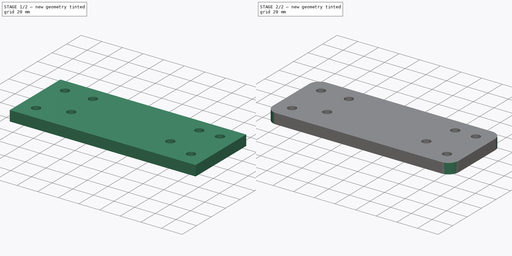
[diagram: build sequence overview — one tinted view per stage of 2, left to right]
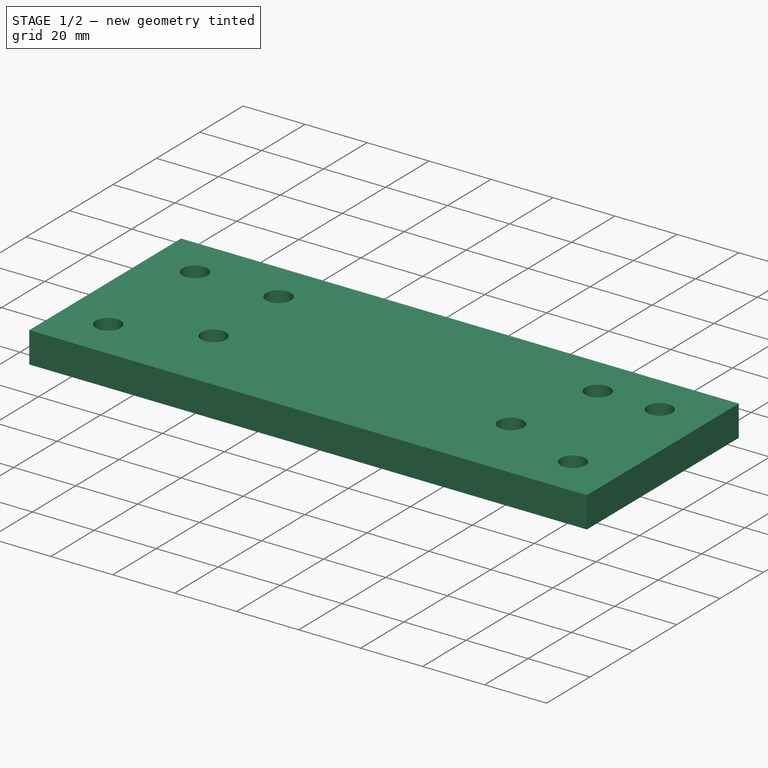
[diagram: stage 1 of 2 — iso view after this stage's code; geometry added in this stage tinted green]
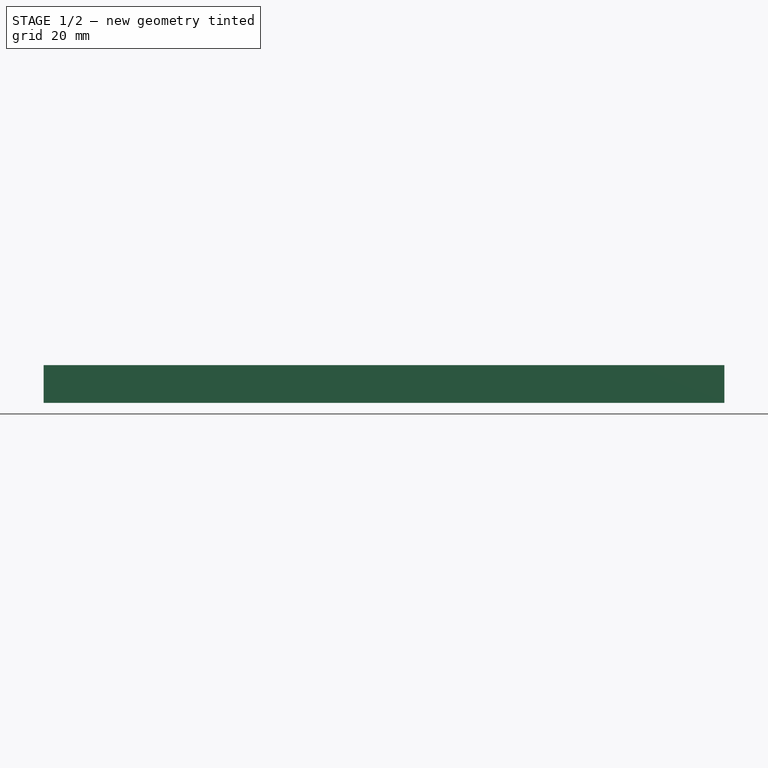
[diagram: stage 1 of 2 — front view after this stage's code; geometry added in this stage tinted green]
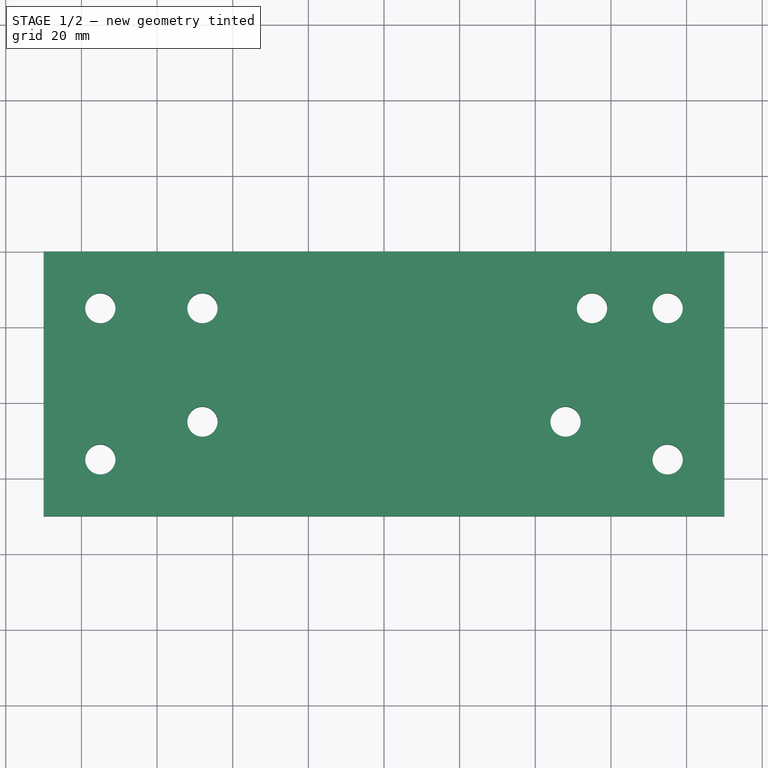
[diagram: stage 1 of 2 — top view after this stage's code; geometry added in this stage tinted green]
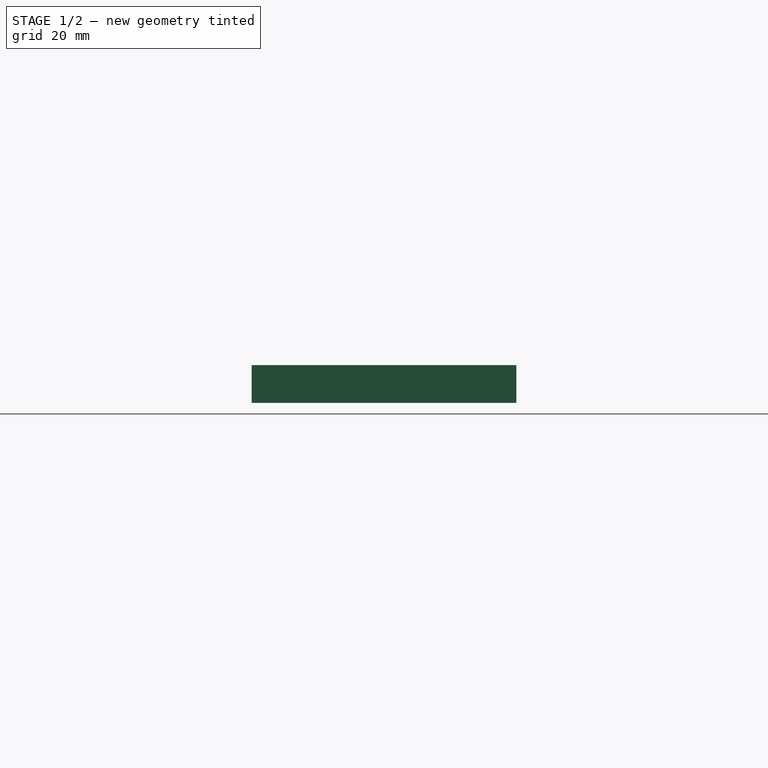
[diagram: stage 1 of 2 — right view after this stage's code; geometry added in this stage tinted green]
FCSTD DOCUMENT  (FreeCAD 0.19R24276 (Git))
Label: BLDC_holder_opora_x2_V2
License: All rights reserved
LicenseURL: http://en.wikipedia.org/wiki/All_rights_reserved
objects: Sketcher::SketchObject×1, PartDesign::Pad×1, PartDesign::Fillet×1, PartDesign::Body×1
note: 6 computed .brp shape members not serialized (recipe doc carries the construction recipe); baked Part::Feature solids carry a one-line shape summary decoded from their .brp

FEATURE [Sketcher::SketchObject] Sketch
  FullyConstrained = true
  MapMode = 5
  Support = -> [XY_Plane]
  sketch-geometry (20):
    g0: LineSegment StartX=0 StartY=0 StartZ=0 EndX=120 EndY=0 EndZ=0
    g1: LineSegment StartX=120 StartY=0 StartZ=0 EndX=120 EndY=60 EndZ=0
    g2: LineSegment StartX=120 StartY=60 StartZ=0 EndX=0 EndY=60 EndZ=0
    g3: LineSegment StartX=0 StartY=60 StartZ=0 EndX=0 EndY=0 EndZ=0
    g4: Circle CenterX=-15 CenterY=45 CenterZ=0 NormalX=0 NormalY=0 NormalZ=1 AngleXU=0 Radius=4
    g5: Circle CenterX=135 CenterY=45 CenterZ=0 NormalX=0 NormalY=0 NormalZ=1 AngleXU=0 Radius=4
    g6: LineSegment StartX=60 StartY=0 StartZ=0 EndX=60 EndY=45 EndZ=0
    g7: Circle CenterX=-15 CenterY=5 CenterZ=0 NormalX=0 NormalY=0 NormalZ=1 AngleXU=0 Radius=4
    g8: Circle CenterX=135 CenterY=5 CenterZ=0 NormalX=0 NormalY=0 NormalZ=1 AngleXU=0 Radius=4
    g9: LineSegment StartX=-30 StartY=60 StartZ=0 EndX=150 EndY=60 EndZ=0
    g10: LineSegment StartX=150 StartY=60 StartZ=0 EndX=150 EndY=-10 EndZ=0
    g11: LineSegment StartX=150 StartY=-10 StartZ=0 EndX=-30 EndY=-10 EndZ=0
    g12: LineSegment StartX=-30 StartY=-10 StartZ=0 EndX=-30 EndY=60 EndZ=0
    g13: LineSegment StartX=60 StartY=0 StartZ=0 EndX=60 EndY=-10 EndZ=0
    g14: Circle CenterX=12 CenterY=45 CenterZ=0 NormalX=0 NormalY=0 NormalZ=1 AngleXU=0 Radius=4
    g15: Circle CenterX=108 CenterY=45 CenterZ=0 NormalX=0 NormalY=0 NormalZ=1 AngleXU=0 Radius=4
    g16: LineSegment StartX=60 StartY=0 StartZ=0 EndX=60 EndY=45 EndZ=0
    g17: Circle CenterX=12 CenterY=15 CenterZ=0 NormalX=0 NormalY=0 NormalZ=1 AngleXU=0 Radius=4
    g18: Circle CenterX=108 CenterY=15 CenterZ=0 NormalX=0 NormalY=0 NormalZ=1 AngleXU=0 Radius=4
    g19: Circle CenterX=115 CenterY=45 CenterZ=0 NormalX=0 NormalY=0 NormalZ=1 AngleXU=0 Radius=4
  constraints (56):
    c: Coincident(g0,g1)
    c: Coincident(g1,g2)
    c: Coincident(g2,g3)
    c: Coincident(g3,g0)
    c: Horizontal(g0)
    c: Horizontal(g2)
    c: Vertical(g1)
    c: Vertical(g3)
    c: Coincident(g0,g-1)
    c: DistanceX(g0,g0) = 120
    c: DistanceY(g3,g3) = 60
    c: Horizontal(g4,g5)
    c: Diameter(g4) = 8
    c: Equal(g4,g5)
    c: DistanceX(g4,g5) = 150
    c: Vertical(g6)
    c: Symmetric(g0,g0,g6)
    c: Symmetric(g4,g5,g6)
    c: Horizontal(g7,g8)
    c: Equal(g4,g7) = 8
    c: Equal(g7,g8)
    c: DistanceX(g7,g8) = 150
    c: Vertical(g7,g4)
    c: Coincident(g9,g10)
    c: Coincident(g10,g11)
    c: Coincident(g11,g12)
    c: Coincident(g12,g9)
    c: Horizontal(g9)
    c: Horizontal(g11)
    c: Vertical(g10)
    c: Vertical(g12)
    c: Coincident(g13,g6)
    c: Vertical(g13)
    c: Symmetric(g11,g10,g13)
    c: DistanceY(g10,g8) = 15
    c: DistanceY(g13,g-1) = 10
    c: DistanceY(g12,g12) = 70
    c: DistanceX(g8,g10) = 15
    c: Horizontal(g14,g15)
    c: DistanceX(g14,g15) = 96
    c: Coincident(g16,g6)
    c: Vertical(g16)
    c: Symmetric(g14,g15,g16)
    c: Horizontal(g17,g18)
    c: DistanceX(g17,g18) = 96
    c: Vertical(g17,g14)
    c: DistanceY(g18,g15) = 30
    c: DistanceY(g15,g1) = 15
    c: Horizontal(g5,g15)
    c: Diameter(g18) = 8
    c: Equal(g18,g15)
    c: Equal(g18,g14)
    c: Equal(g18,g17)
    c: Equal(g19,g5)
    c: Horizontal(g19,g15)
    c: DistanceX(g15,g19) = 7
FEATURE [PartDesign::Pad] Pad
  Direction = (1,1,1)
  Length = 10
  Length2 = 100
  Profile = -> Sketch
  Type = 0
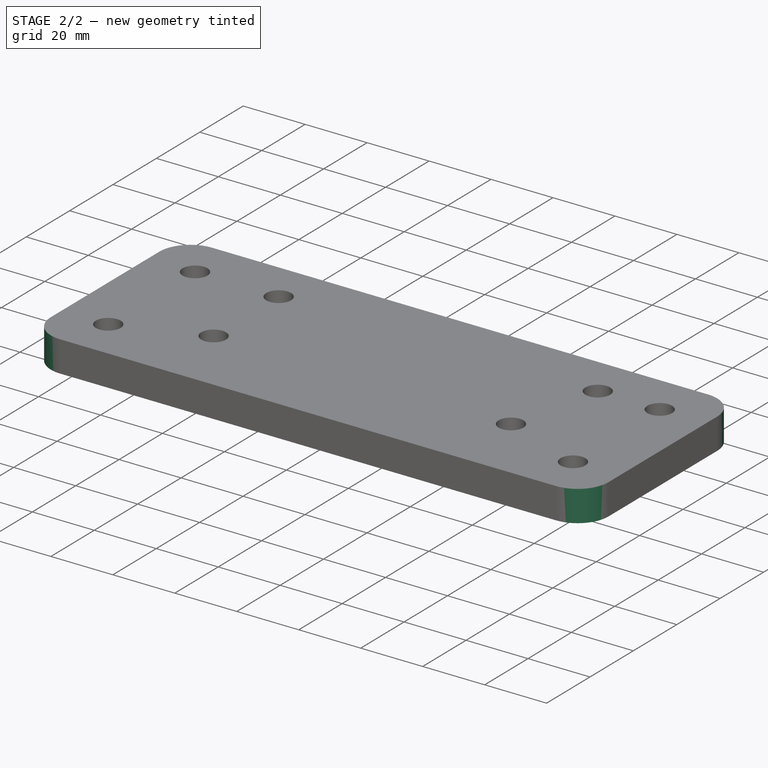
[diagram: stage 2 of 2 — iso view after this stage's code; geometry added in this stage tinted green]
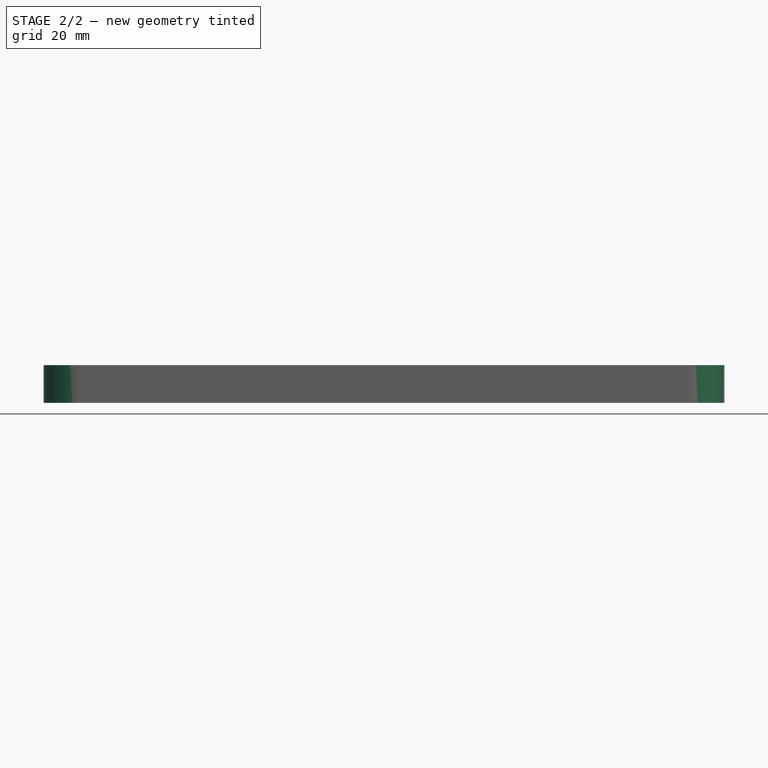
[diagram: stage 2 of 2 — front view after this stage's code; geometry added in this stage tinted green]
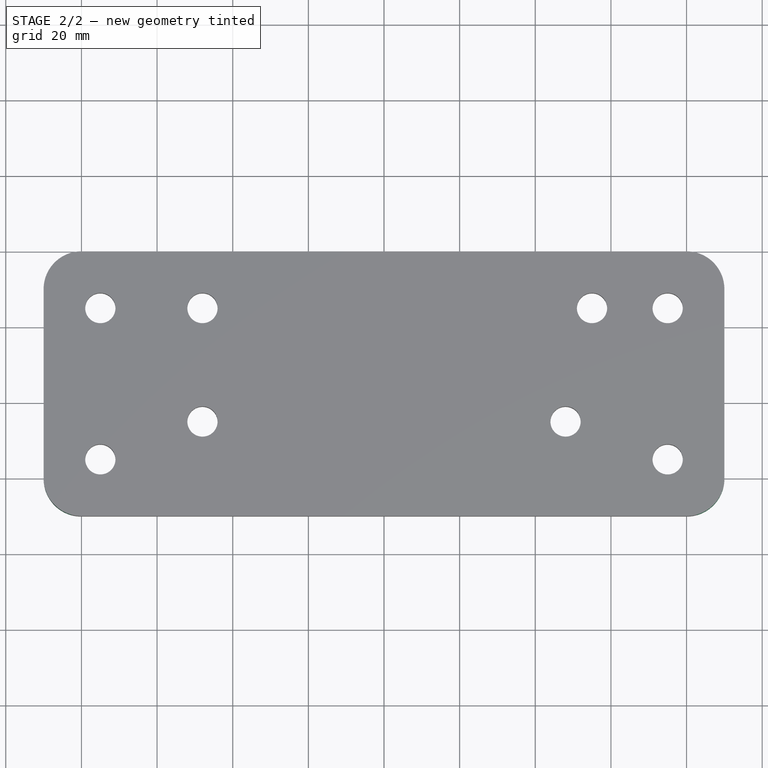
[diagram: stage 2 of 2 — top view after this stage's code; geometry added in this stage tinted green]
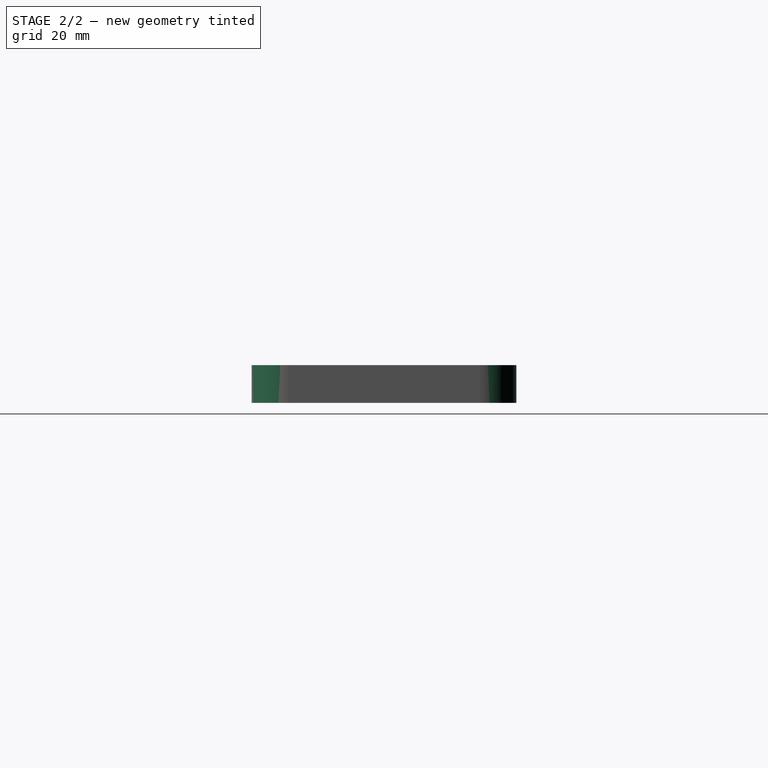
[diagram: stage 2 of 2 — right view after this stage's code; geometry added in this stage tinted green]
FEATURE [PartDesign::Fillet] Fillet
  Base = -> Pad [Edge8,Edge1,Edge5,Edge2]
  BaseFeature = -> Pad
  Radius = 10
  SupportTransform = false
FEATURE [PartDesign::Body] Body
  Group = -> [Sketch,Pad,Fillet]
  Origin = -> Origin
  Tip = -> Fillet
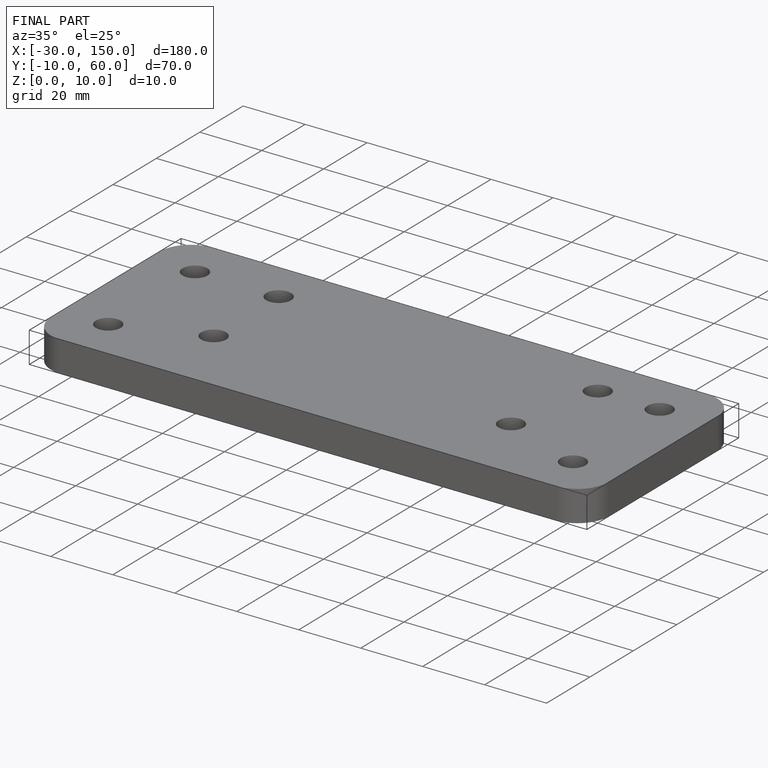
[diagram: finished part — iso view with bounding-box wireframe]
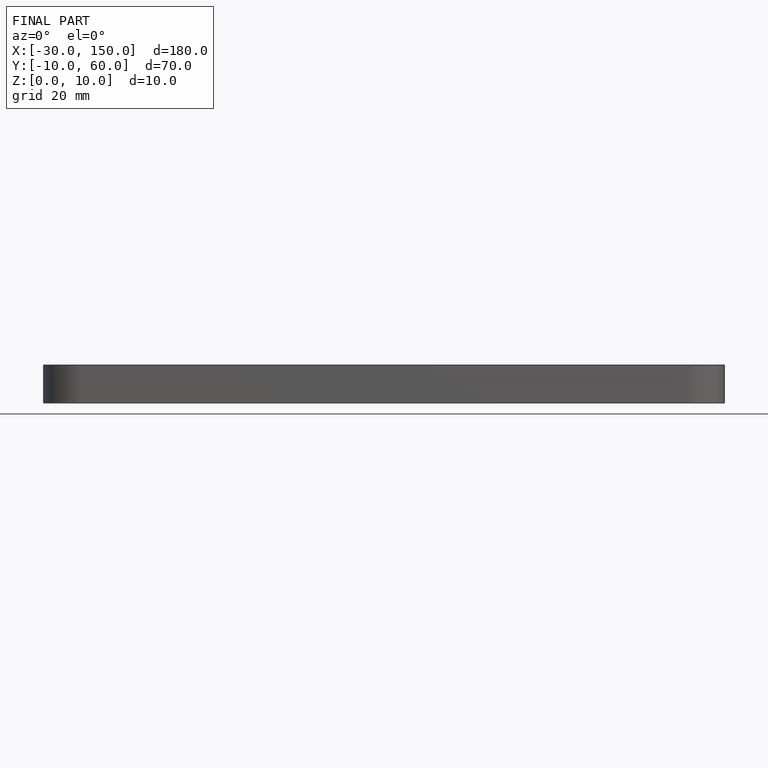
[diagram: finished part — front view with bounding-box wireframe]
